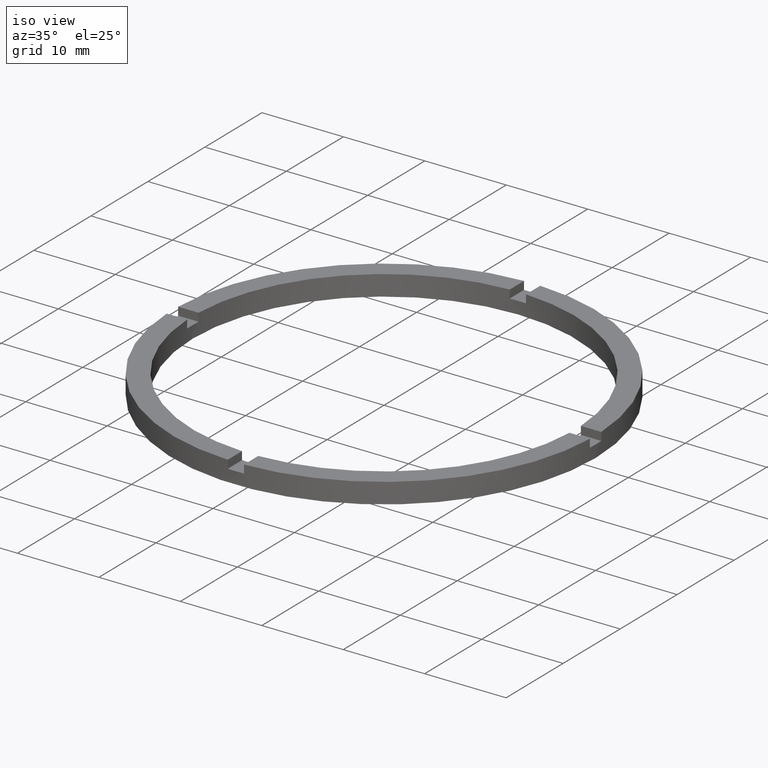
[diagram: clean part render]
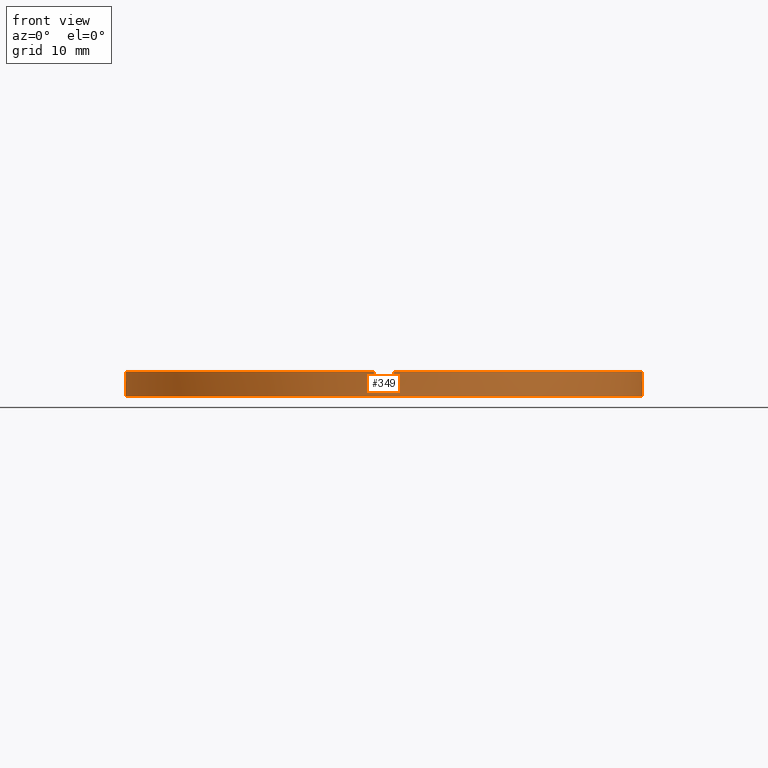
[diagram: tour spotlight — one face highlighted and labeled with its STEP entity id]
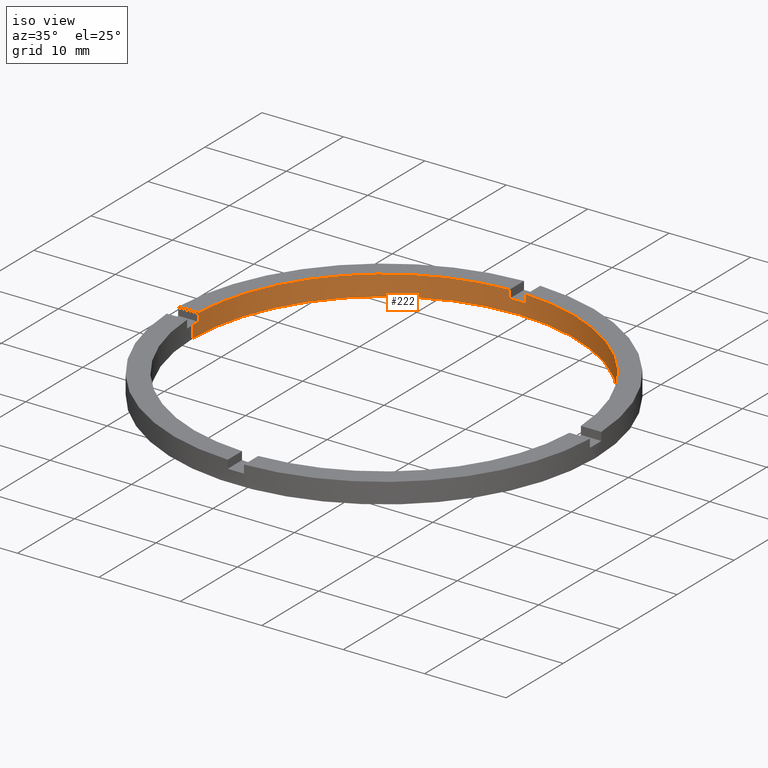
[diagram: tour spotlight — one face highlighted and labeled with its STEP entity id]
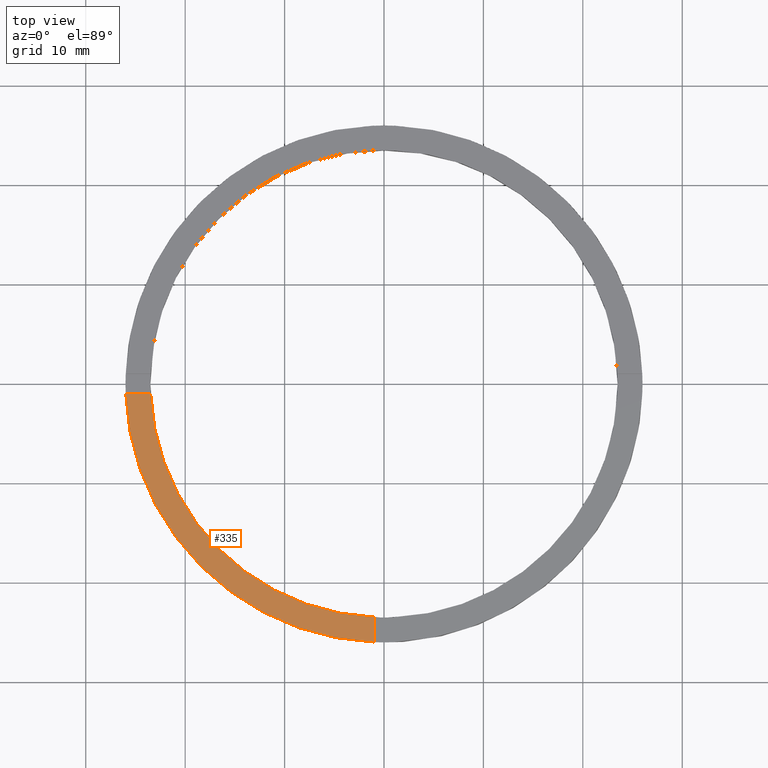
[diagram: tour spotlight — one face highlighted and labeled with its STEP entity id]
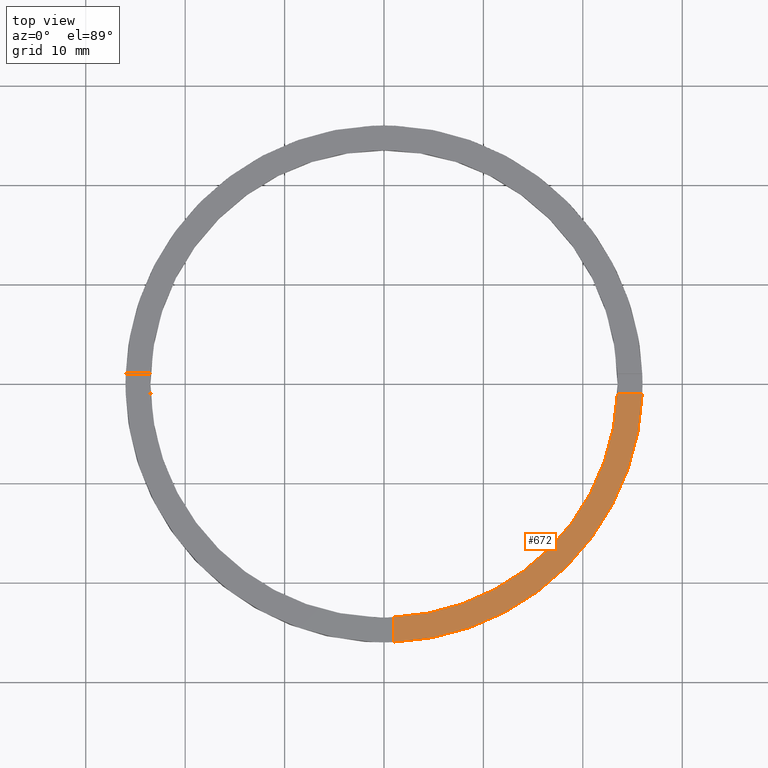
[diagram: tour spotlight — one face highlighted and labeled with its STEP entity id]
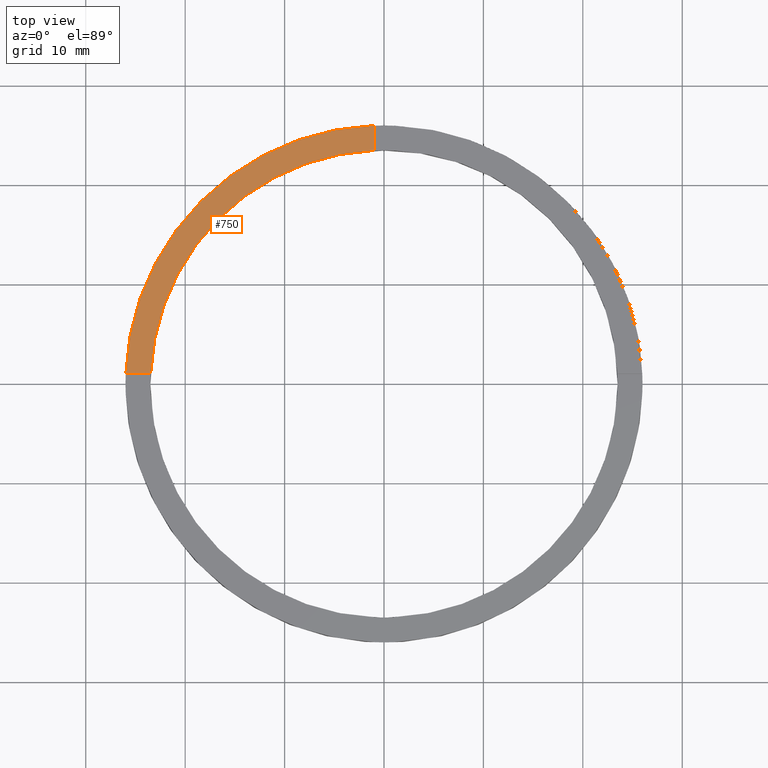
[diagram: tour spotlight — one face highlighted and labeled with its STEP entity id]
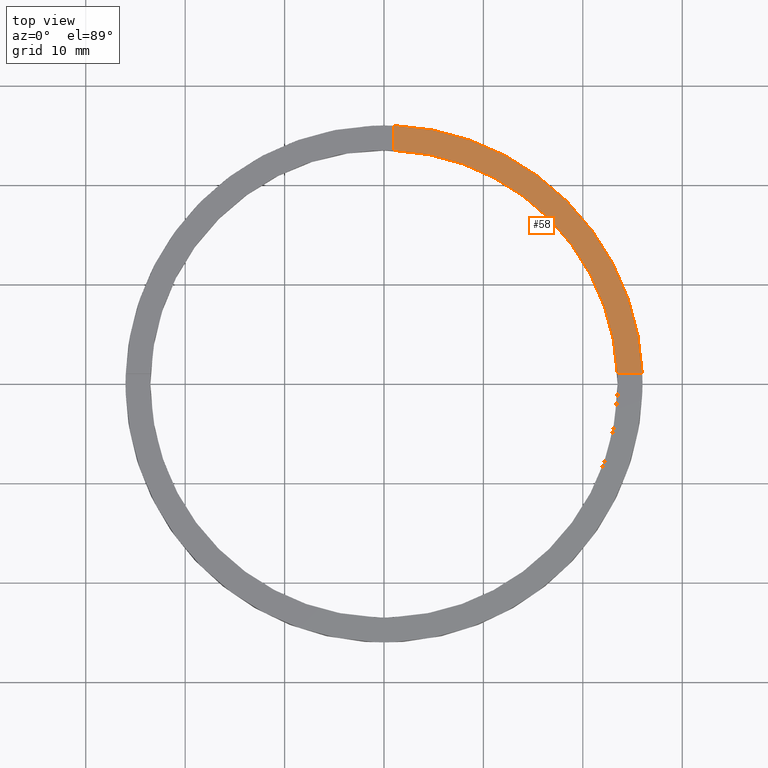
[diagram: tour spotlight — one face highlighted and labeled with its STEP entity id]
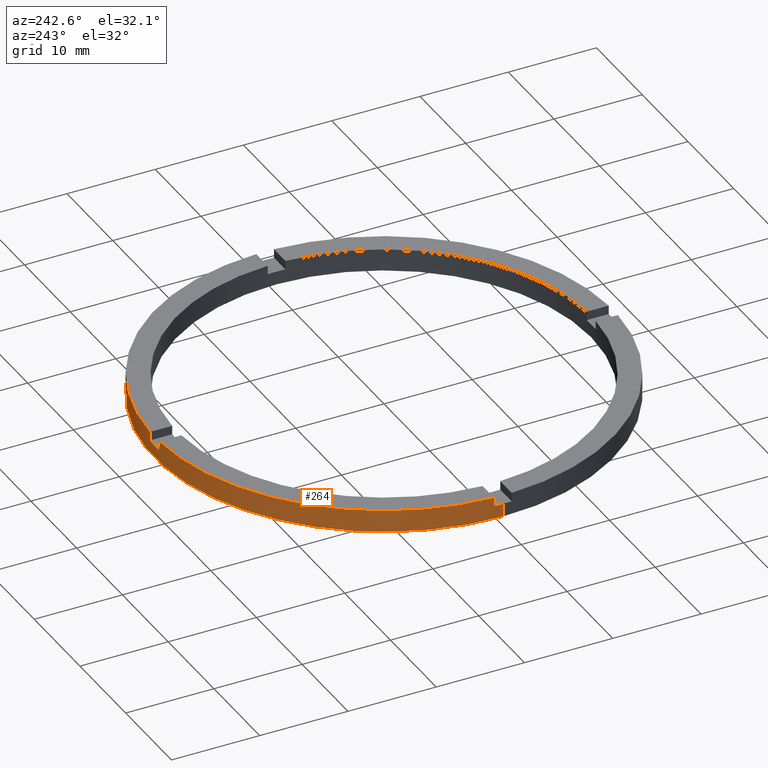
[diagram: tour spotlight — one face highlighted and labeled with its STEP entity id]
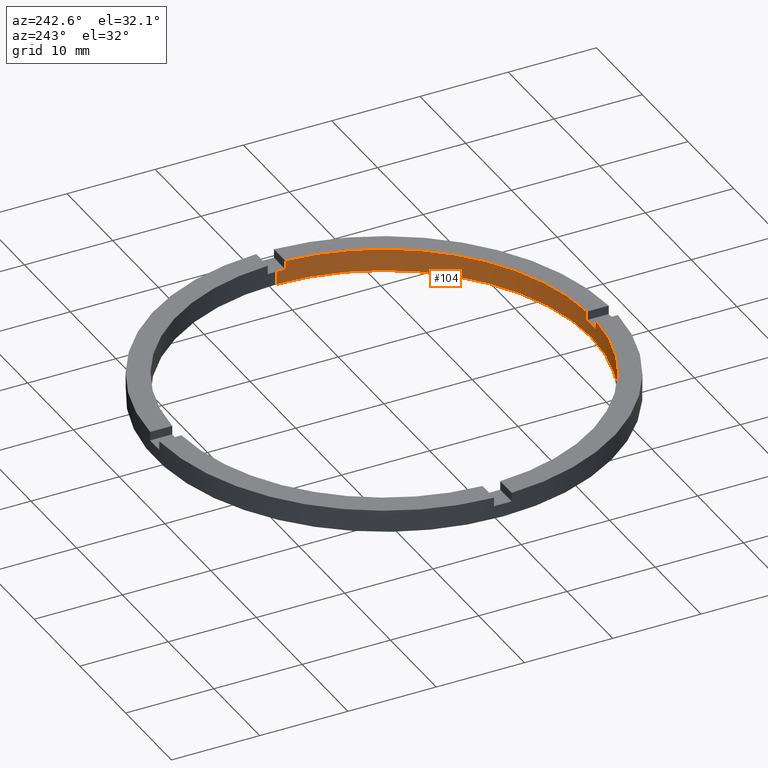
[diagram: tour spotlight — one face highlighted and labeled with its STEP entity id]
A machine part: a face-by-face anatomy tour. The part has 21 B-rep faces; the first image is the clean iso view, then the 8 largest visible faces are spotlighted one at a time (largest first), each with its STEP entity span.

Face 1 — front view, entity #349. In plain terms, the highlighted cylindrical surface (partial cylindrical patch) has radius 26 mm, axis along (-0, -0, -1).
Definition (entity closure, byte-faithful):
#6 = CARTESIAN_POINT ( 'NONE',  ( 0.9999999999998397948, -25.98076211353317078, 1.500000000000000000 ) ) ;
#8 = EDGE_CURVE ( 'NONE', #701, #239, #758, .T. ) ;
#16 = DIRECTION ( 'NONE',  ( 0.000000000000000000, 0.000000000000000000, 1.000000000000000000 ) ) ;
#60 = DIRECTION ( 'NONE',  ( 0.000000000000000000, 0.000000000000000000, 1.000000000000000000 ) ) ;
#78 = DIRECTION ( 'NONE',  ( -0.000000000000000000, -0.000000000000000000, -1.000000000000000000 ) ) ;
#85 = EDGE_CURVE ( 'NONE', #694, #760, #172, .T. ) ;
#88 = CARTESIAN_POINT ( 'NONE',  ( 25.98076211353315657, -1.000000000000157430, 2.500000000000000000 ) ) ;
#90 = EDGE_CURVE ( 'NONE', #163, #731, #158, .T. ) ;
#92 = VERTEX_POINT ( 'NONE', #6 ) ;
#94 = DIRECTION ( 'NONE',  ( -0.000000000000000000, -0.000000000000000000, -1.000000000000000000 ) ) ;
#97 = AXIS2_PLACEMENT_3D ( 'NONE', #463, #299, #529 ) ;
#102 = CARTESIAN_POINT ( 'NONE',  ( -26.00000000000000355, 0.000000000000000000, 2.500000000000000000 ) ) ;
#107 = EDGE_CURVE ( 'NONE', #731, #685, #156, .T. ) ;
#116 = VERTEX_POINT ( 'NONE', #738 ) ;
#127 = CARTESIAN_POINT ( 'NONE',  ( 26.00000000000000355, 3.184081677783118585E-15, 2.500000000000000000 ) ) ;
#133 = CARTESIAN_POINT ( 'NONE',  ( -25.98076211353316367, -1.000000000000026201, 1.500000000000000000 ) ) ;
#156 = LINE ( 'NONE', #127, #157 ) ;
#157 = VECTOR ( 'NONE', #627, 1000.000000000000000 ) ;
#158 = CIRCLE ( 'NONE', #652, 26.00000000000000355 ) ;
#163 = VERTEX_POINT ( 'NONE', #388 ) ;
#168 = CYLINDRICAL_SURFACE ( 'NONE', #97, 26.00000000000000355 ) ;
#172 = CIRCLE ( 'NONE', #641, 26.00000000000000355 ) ;
#173 = ORIENTED_EDGE ( 'NONE', *, *, #107, .F. ) ;
#180 = LINE ( 'NONE', #474, #673 ) ;
#182 = LINE ( 'NONE', #683, #452 ) ;
#186 = VERTEX_POINT ( 'NONE', #636 ) ;
#187 = EDGE_CURVE ( 'NONE', #548, #685, #410, .T. ) ;
#219 = ORIENTED_EDGE ( 'NONE', *, *, #526, .T. ) ;
#220 = CARTESIAN_POINT ( 'NONE',  ( -26.00000000000000355, 0.000000000000000000, 0.000000000000000000 ) ) ;
#228 = ORIENTED_EDGE ( 'NONE', *, *, #271, .T. ) ;
#237 = DIRECTION ( 'NONE',  ( 0.000000000000000000, 0.000000000000000000, 1.000000000000000000 ) ) ;
#239 = VERTEX_POINT ( 'NONE', #133 ) ;
#251 = EDGE_CURVE ( 'NONE', #328, #186, #180, .T. ) ;
#252 = CARTESIAN_POINT ( 'NONE',  ( -26.00000000000000355, 0.000000000000000000, 1.500000000000000000 ) ) ;
#257 = EDGE_CURVE ( 'NONE', #116, #186, #700, .T. ) ;
#259 = AXIS2_PLACEMENT_3D ( 'NONE', #767, #60, #693 ) ;
#270 = VECTOR ( 'NONE', #94, 1000.000000000000000 ) ;
#271 = EDGE_CURVE ( 'NONE', #701, #548, #437, .T. ) ;
#275 = VECTOR ( 'NONE', #557, 1000.000000000000000 ) ;
#286 = LINE ( 'NONE', #379, #270 ) ;
#294 = EDGE_CURVE ( 'NONE', #328, #92, #682, .T. ) ;
#299 = DIRECTION ( 'NONE',  ( -0.000000000000000000, -0.000000000000000000, -1.000000000000000000 ) ) ;
#301 = CARTESIAN_POINT ( 'NONE',  ( 0.000000000000000000, 0.000000000000000000, 2.500000000000000000 ) ) ;
#310 = CARTESIAN_POINT ( 'NONE',  ( 0.000000000000000000, 0.000000000000000000, 1.500000000000000000 ) ) ;
#319 = DIRECTION ( 'NONE',  ( 1.000000000000000000, 0.000000000000000000, 0.000000000000000000 ) ) ;
#328 = VERTEX_POINT ( 'NONE', #538 ) ;
#340 = AXIS2_PLACEMENT_3D ( 'NONE', #644, #615, #395 ) ;
#349 = ADVANCED_FACE ( 'NONE', ( #670 ), #168, .T. ) ;
#358 = DIRECTION ( 'NONE',  ( 0.000000000000000000, 0.000000000000000000, 1.000000000000000000 ) ) ;
#362 = EDGE_CURVE ( 'NONE', #163, #760, #182, .T. ) ;
#379 = CARTESIAN_POINT ( 'NONE',  ( -25.98076211353316367, -1.000000000000026201, 2.500000000000000000 ) ) ;
#388 = CARTESIAN_POINT ( 'NONE',  ( 25.98076211353315657, -1.000000000000157430, 1.500000000000000000 ) ) ;
#395 = DIRECTION ( 'NONE',  ( 1.000000000000000000, 0.000000000000000000, 0.000000000000000000 ) ) ;
#410 = CIRCLE ( 'NONE', #259, 26.00000000000000355 ) ;
#437 = LINE ( 'NONE', #102, #681 ) ;
#452 = VECTOR ( 'NONE', #549, 1000.000000000000000 ) ;
#458 = ORIENTED_EDGE ( 'NONE', *, *, #294, .F. ) ;
#463 = CARTESIAN_POINT ( 'NONE',  ( 0.000000000000000000, 0.000000000000000000, 2.500000000000000000 ) ) ;
#471 = CARTESIAN_POINT ( 'NONE',  ( 0.000000000000000000, 0.000000000000000000, 1.500000000000000000 ) ) ;
#474 = CARTESIAN_POINT ( 'NONE',  ( -1.000000000000160316, -25.98076211353315657, 2.500000000000000000 ) ) ;
#484 = ORIENTED_EDGE ( 'NONE', *, *, #85, .F. ) ;
#499 = CARTESIAN_POINT ( 'NONE',  ( 0.9999999999998397948, -25.98076211353317078, 2.500000000000000000 ) ) ;
#508 = ORIENTED_EDGE ( 'NONE', *, *, #90, .F. ) ;
#513 = CARTESIAN_POINT ( 'NONE',  ( 26.00000000000000355, 3.184081677783118585E-15, 0.000000000000000000 ) ) ;
#526 = EDGE_CURVE ( 'NONE', #694, #92, #545, .T. ) ;
#529 = DIRECTION ( 'NONE',  ( -1.000000000000000000, 0.000000000000000000, 0.000000000000000000 ) ) ;
#538 = CARTESIAN_POINT ( 'NONE',  ( -1.000000000000160316, -25.98076211353315657, 1.500000000000000000 ) ) ;
#545 = LINE ( 'NONE', #653, #275 ) ;
#548 = VERTEX_POINT ( 'NONE', #220 ) ;
#549 = DIRECTION ( 'NONE',  ( 0.000000000000000000, 0.000000000000000000, 1.000000000000000000 ) ) ;
#557 = DIRECTION ( 'NONE',  ( -0.000000000000000000, -0.000000000000000000, -1.000000000000000000 ) ) ;
#558 = CARTESIAN_POINT ( 'NONE',  ( 0.000000000000000000, 0.000000000000000000, 2.500000000000000000 ) ) ;
#564 = DIRECTION ( 'NONE',  ( 0.000000000000000000, -0.000000000000000000, 1.000000000000000000 ) ) ;
#569 = CARTESIAN_POINT ( 'NONE',  ( 26.00000000000000355, 3.184081677783118585E-15, 1.500000000000000000 ) ) ;
#615 = DIRECTION ( 'NONE',  ( -0.000000000000000000, 0.000000000000000000, 1.000000000000000000 ) ) ;
#618 = DIRECTION ( 'NONE',  ( 1.000000000000000000, 0.000000000000000000, 0.000000000000000000 ) ) ;
#620 = DIRECTION ( 'NONE',  ( 0.000000000000000000, 0.000000000000000000, 1.000000000000000000 ) ) ;
#627 = DIRECTION ( 'NONE',  ( -0.000000000000000000, -0.000000000000000000, -1.000000000000000000 ) ) ;
#636 = CARTESIAN_POINT ( 'NONE',  ( -1.000000000000160316, -25.98076211353315657, 2.500000000000000000 ) ) ;
#641 = AXIS2_PLACEMENT_3D ( 'NONE', #558, #620, #716 ) ;
#644 = CARTESIAN_POINT ( 'NONE',  ( 0.000000000000000000, 0.000000000000000000, 1.500000000000000000 ) ) ;
#652 = AXIS2_PLACEMENT_3D ( 'NONE', #310, #564, #726 ) ;
#653 = CARTESIAN_POINT ( 'NONE',  ( 0.9999999999998397948, -25.98076211353317078, 2.500000000000000000 ) ) ;
#670 = FACE_OUTER_BOUND ( 'NONE', #724, .T. ) ;
#673 = VECTOR ( 'NONE', #237, 1000.000000000000000 ) ;
#681 = VECTOR ( 'NONE', #78, 1000.000000000000000 ) ;
#682 = CIRCLE ( 'NONE', #340, 26.00000000000000355 ) ;
#683 = CARTESIAN_POINT ( 'NONE',  ( 25.98076211353315657, -1.000000000000157430, 2.500000000000000000 ) ) ;
#685 = VERTEX_POINT ( 'NONE', #513 ) ;
#690 = ORIENTED_EDGE ( 'NONE', *, *, #780, .T. ) ;
#693 = DIRECTION ( 'NONE',  ( 1.000000000000000000, 0.000000000000000000, 0.000000000000000000 ) ) ;
#694 = VERTEX_POINT ( 'NONE', #499 ) ;
#700 = CIRCLE ( 'NONE', #723, 26.00000000000000355 ) ;
#701 = VERTEX_POINT ( 'NONE', #252 ) ;
#704 = ORIENTED_EDGE ( 'NONE', *, *, #251, .T. ) ;
#716 = DIRECTION ( 'NONE',  ( 1.000000000000000000, 0.000000000000000000, 0.000000000000000000 ) ) ;
#723 = AXIS2_PLACEMENT_3D ( 'NONE', #301, #358, #618 ) ;
#724 = EDGE_LOOP ( 'NONE', ( #173, #508, #752, #484, #219, #458, #704, #742, #690, #747, #228, #745 ) ) ;
#726 = DIRECTION ( 'NONE',  ( 1.000000000000000000, 0.000000000000000000, 0.000000000000000000 ) ) ;
#731 = VERTEX_POINT ( 'NONE', #569 ) ;
#738 = CARTESIAN_POINT ( 'NONE',  ( -25.98076211353316367, -1.000000000000026201, 2.500000000000000000 ) ) ;
#742 = ORIENTED_EDGE ( 'NONE', *, *, #257, .F. ) ;
#745 = ORIENTED_EDGE ( 'NONE', *, *, #187, .T. ) ;
#747 = ORIENTED_EDGE ( 'NONE', *, *, #8, .F. ) ;
#752 = ORIENTED_EDGE ( 'NONE', *, *, #362, .T. ) ;
#758 = CIRCLE ( 'NONE', #774, 26.00000000000000355 ) ;
#760 = VERTEX_POINT ( 'NONE', #88 ) ;
#767 = CARTESIAN_POINT ( 'NONE',  ( 0.000000000000000000, 0.000000000000000000, 0.000000000000000000 ) ) ;
#774 = AXIS2_PLACEMENT_3D ( 'NONE', #471, #16, #319 ) ;
#780 = EDGE_CURVE ( 'NONE', #116, #239, #286, .T. ) ;

Face 2 — iso view, entity #222. In plain terms, the highlighted cylindrical surface (partial cylindrical patch) has radius 23.5 mm, axis along (-0, -0, -1).
Definition (entity closure, byte-faithful):
#5 = VECTOR ( 'NONE', #650, 1000.000000000000000 ) ;
#22 = VERTEX_POINT ( 'NONE', #409 ) ;
#28 = CIRCLE ( 'NONE', #138, 23.50000000000000355 ) ;
#39 = DIRECTION ( 'NONE',  ( -0.000000000000000000, -0.000000000000000000, -1.000000000000000000 ) ) ;
#46 = DIRECTION ( 'NONE',  ( 1.000000000000000000, 0.000000000000000000, 0.000000000000000000 ) ) ;
#65 = VERTEX_POINT ( 'NONE', #708 ) ;
#71 = AXIS2_PLACEMENT_3D ( 'NONE', #517, #381, #128 ) ;
#89 = AXIS2_PLACEMENT_3D ( 'NONE', #525, #137, #601 ) ;
#93 = AXIS2_PLACEMENT_3D ( 'NONE', #293, #687, #607 ) ;
#99 = CARTESIAN_POINT ( 'NONE',  ( 23.50000000000000355, 2.877919977996280715E-15, 1.500000000000000000 ) ) ;
#103 = DIRECTION ( 'NONE',  ( 0.000000000000000000, 0.000000000000000000, 1.000000000000000000 ) ) ;
#105 = DIRECTION ( 'NONE',  ( 1.000000000000000000, 0.000000000000000000, 0.000000000000000000 ) ) ;
#106 = CARTESIAN_POINT ( 'NONE',  ( 23.47871376374779828, 0.9999999999998425704, 2.500000000000000000 ) ) ;
#112 = CARTESIAN_POINT ( 'NONE',  ( -1.000000000000026201, 23.47871376374779118, 1.500000000000000000 ) ) ;
#118 = AXIS2_PLACEMENT_3D ( 'NONE', #655, #773, #105 ) ;
#128 = DIRECTION ( 'NONE',  ( 1.000000000000000000, 0.000000000000000000, 0.000000000000000000 ) ) ;
#137 = DIRECTION ( 'NONE',  ( 0.000000000000000000, 0.000000000000000000, 1.000000000000000000 ) ) ;
#138 = AXIS2_PLACEMENT_3D ( 'NONE', #203, #343, #46 ) ;
#143 = CARTESIAN_POINT ( 'NONE',  ( 0.000000000000000000, 0.000000000000000000, 2.500000000000000000 ) ) ;
#146 = CARTESIAN_POINT ( 'NONE',  ( 23.47871376374779828, 0.9999999999998425704, 1.500000000000000000 ) ) ;
#147 = EDGE_CURVE ( 'NONE', #22, #481, #434, .T. ) ;
#155 = CARTESIAN_POINT ( 'NONE',  ( 23.50000000000000355, 2.877919977996280715E-15, 2.500000000000000000 ) ) ;
#175 = ORIENTED_EDGE ( 'NONE', *, *, #552, .T. ) ;
#176 = EDGE_CURVE ( 'NONE', #429, #770, #447, .T. ) ;
#179 = AXIS2_PLACEMENT_3D ( 'NONE', #143, #284, #391 ) ;
#203 = CARTESIAN_POINT ( 'NONE',  ( 0.000000000000000000, 0.000000000000000000, 1.500000000000000000 ) ) ;
#207 = VERTEX_POINT ( 'NONE', #99 ) ;
#213 = VERTEX_POINT ( 'NONE', #146 ) ;
#221 = ORIENTED_EDGE ( 'NONE', *, *, #669, .T. ) ;
#222 = ADVANCED_FACE ( 'NONE', ( #688 ), #418, .F. ) ;
#256 = CARTESIAN_POINT ( 'NONE',  ( -23.50000000000000355, 0.000000000000000000, 2.500000000000000000 ) ) ;
#262 = CIRCLE ( 'NONE', #179, 23.50000000000000355 ) ;
#263 = VECTOR ( 'NONE', #39, 1000.000000000000000 ) ;
#276 = CIRCLE ( 'NONE', #71, 23.50000000000000355 ) ;
#278 = LINE ( 'NONE', #320, #565 ) ;
#284 = DIRECTION ( 'NONE',  ( 0.000000000000000000, 0.000000000000000000, 1.000000000000000000 ) ) ;
#293 = CARTESIAN_POINT ( 'NONE',  ( 0.000000000000000000, 0.000000000000000000, 2.500000000000000000 ) ) ;
#295 = LINE ( 'NONE', #715, #573 ) ;
#320 = CARTESIAN_POINT ( 'NONE',  ( 23.47871376374779828, 0.9999999999998425704, 2.500000000000000000 ) ) ;
#322 = VERTEX_POINT ( 'NONE', #112 ) ;
#326 = CARTESIAN_POINT ( 'NONE',  ( -1.000000000000026201, 23.47871376374779118, 2.500000000000000000 ) ) ;
#343 = DIRECTION ( 'NONE',  ( 0.000000000000000000, -0.000000000000000000, 1.000000000000000000 ) ) ;
#344 = AXIS2_PLACEMENT_3D ( 'NONE', #531, #611, #639 ) ;
#346 = DIRECTION ( 'NONE',  ( 0.000000000000000000, 0.000000000000000000, 1.000000000000000000 ) ) ;
#355 = CARTESIAN_POINT ( 'NONE',  ( -23.50000000000000355, 0.000000000000000000, 1.500000000000000000 ) ) ;
#366 = EDGE_CURVE ( 'NONE', #22, #322, #692, .T. ) ;
#371 = DIRECTION ( 'NONE',  ( -0.000000000000000000, -0.000000000000000000, -1.000000000000000000 ) ) ;
#381 = DIRECTION ( 'NONE',  ( 0.000000000000000000, 0.000000000000000000, 1.000000000000000000 ) ) ;
#391 = DIRECTION ( 'NONE',  ( 1.000000000000000000, 0.000000000000000000, 0.000000000000000000 ) ) ;
#409 = CARTESIAN_POINT ( 'NONE',  ( 0.9999999999999737987, 23.47871376374779473, 1.500000000000000000 ) ) ;
#418 = CYLINDRICAL_SURFACE ( 'NONE', #93, 23.50000000000000355 ) ;
#429 = VERTEX_POINT ( 'NONE', #586 ) ;
#434 = LINE ( 'NONE', #759, #686 ) ;
#438 = EDGE_CURVE ( 'NONE', #592, #481, #276, .T. ) ;
#442 = VECTOR ( 'NONE', #103, 1000.000000000000000 ) ;
#443 = ORIENTED_EDGE ( 'NONE', *, *, #616, .F. ) ;
#446 = ORIENTED_EDGE ( 'NONE', *, *, #546, .F. ) ;
#447 = LINE ( 'NONE', #679, #442 ) ;
#448 = ORIENTED_EDGE ( 'NONE', *, *, #662, .T. ) ;
#481 = VERTEX_POINT ( 'NONE', #486 ) ;
#486 = CARTESIAN_POINT ( 'NONE',  ( 0.9999999999999737987, 23.47871376374779473, 2.500000000000000000 ) ) ;
#491 = ORIENTED_EDGE ( 'NONE', *, *, #176, .F. ) ;
#505 = ORIENTED_EDGE ( 'NONE', *, *, #147, .F. ) ;
#510 = ORIENTED_EDGE ( 'NONE', *, *, #438, .T. ) ;
#511 = EDGE_CURVE ( 'NONE', #207, #721, #543, .T. ) ;
#516 = VERTEX_POINT ( 'NONE', #355 ) ;
#517 = CARTESIAN_POINT ( 'NONE',  ( 0.000000000000000000, 0.000000000000000000, 2.500000000000000000 ) ) ;
#525 = CARTESIAN_POINT ( 'NONE',  ( 0.000000000000000000, 0.000000000000000000, 1.500000000000000000 ) ) ;
#531 = CARTESIAN_POINT ( 'NONE',  ( 0.000000000000000000, 0.000000000000000000, 0.000000000000000000 ) ) ;
#533 = CIRCLE ( 'NONE', #89, 23.50000000000000355 ) ;
#535 = CIRCLE ( 'NONE', #344, 23.50000000000000355 ) ;
#543 = LINE ( 'NONE', #155, #5 ) ;
#546 = EDGE_CURVE ( 'NONE', #622, #322, #295, .T. ) ;
#547 = DIRECTION ( 'NONE',  ( -0.000000000000000000, -0.000000000000000000, -1.000000000000000000 ) ) ;
#552 = EDGE_CURVE ( 'NONE', #622, #770, #262, .T. ) ;
#562 = LINE ( 'NONE', #256, #263 ) ;
#563 = EDGE_CURVE ( 'NONE', #721, #65, #535, .T. ) ;
#565 = VECTOR ( 'NONE', #371, 1000.000000000000000 ) ;
#573 = VECTOR ( 'NONE', #547, 1000.000000000000000 ) ;
#586 = CARTESIAN_POINT ( 'NONE',  ( -23.47871376374779473, 0.9999999999999742428, 1.500000000000000000 ) ) ;
#588 = CARTESIAN_POINT ( 'NONE',  ( 23.50000000000000355, 2.877919977996280715E-15, 0.000000000000000000 ) ) ;
#592 = VERTEX_POINT ( 'NONE', #106 ) ;
#601 = DIRECTION ( 'NONE',  ( 1.000000000000000000, 0.000000000000000000, 0.000000000000000000 ) ) ;
#607 = DIRECTION ( 'NONE',  ( -1.000000000000000000, 0.000000000000000000, 0.000000000000000000 ) ) ;
#611 = DIRECTION ( 'NONE',  ( 0.000000000000000000, 0.000000000000000000, 1.000000000000000000 ) ) ;
#616 = EDGE_CURVE ( 'NONE', #592, #213, #278, .T. ) ;
#622 = VERTEX_POINT ( 'NONE', #326 ) ;
#639 = DIRECTION ( 'NONE',  ( 1.000000000000000000, 0.000000000000000000, 0.000000000000000000 ) ) ;
#650 = DIRECTION ( 'NONE',  ( -0.000000000000000000, -0.000000000000000000, -1.000000000000000000 ) ) ;
#655 = CARTESIAN_POINT ( 'NONE',  ( 0.000000000000000000, 0.000000000000000000, 1.500000000000000000 ) ) ;
#658 = CARTESIAN_POINT ( 'NONE',  ( -23.47871376374779473, 0.9999999999999742428, 2.500000000000000000 ) ) ;
#662 = EDGE_CURVE ( 'NONE', #207, #213, #28, .T. ) ;
#669 = EDGE_CURVE ( 'NONE', #429, #516, #533, .T. ) ;
#679 = CARTESIAN_POINT ( 'NONE',  ( -23.47871376374779473, 0.9999999999999742428, 2.500000000000000000 ) ) ;
#686 = VECTOR ( 'NONE', #346, 1000.000000000000000 ) ;
#687 = DIRECTION ( 'NONE',  ( -0.000000000000000000, -0.000000000000000000, -1.000000000000000000 ) ) ;
#688 = FACE_OUTER_BOUND ( 'NONE', #717, .T. ) ;
#692 = CIRCLE ( 'NONE', #118, 23.50000000000000355 ) ;
#708 = CARTESIAN_POINT ( 'NONE',  ( -23.50000000000000355, 0.000000000000000000, 0.000000000000000000 ) ) ;
#711 = ORIENTED_EDGE ( 'NONE', *, *, #563, .F. ) ;
#715 = CARTESIAN_POINT ( 'NONE',  ( -1.000000000000026201, 23.47871376374779118, 2.500000000000000000 ) ) ;
#717 = EDGE_LOOP ( 'NONE', ( #762, #448, #443, #510, #505, #734, #446, #175, #491, #221, #749, #711 ) ) ;
#721 = VERTEX_POINT ( 'NONE', #588 ) ;
#734 = ORIENTED_EDGE ( 'NONE', *, *, #366, .T. ) ;
#749 = ORIENTED_EDGE ( 'NONE', *, *, #756, .T. ) ;
#756 = EDGE_CURVE ( 'NONE', #516, #65, #562, .T. ) ;
#759 = CARTESIAN_POINT ( 'NONE',  ( 0.9999999999999737987, 23.47871376374779473, 2.500000000000000000 ) ) ;
#762 = ORIENTED_EDGE ( 'NONE', *, *, #511, .F. ) ;
#770 = VERTEX_POINT ( 'NONE', #658 ) ;
#773 = DIRECTION ( 'NONE',  ( 0.000000000000000000, -0.000000000000000000, 1.000000000000000000 ) ) ;

Face 3 — top view, entity #335. In plain terms, the highlighted planar face has unit normal (0, 0, 1).
Definition (entity closure, byte-faithful):
#29 = CARTESIAN_POINT ( 'NONE',  ( -1.000000000000160760, -23.47871376374778407, 2.500000000000000000 ) ) ;
#42 = CARTESIAN_POINT ( 'NONE',  ( -1.000000000000161648, -16.00000000000018119, 2.500000000000000000 ) ) ;
#49 = DIRECTION ( 'NONE',  ( 1.000000000000000000, 1.734723475976806848E-16, -0.000000000000000000 ) ) ;
#56 = DIRECTION ( 'NONE',  ( 1.000000000000000000, 0.000000000000000000, -0.000000000000000000 ) ) ;
#96 = DIRECTION ( 'NONE',  ( 1.301042606982605074E-16, -1.000000000000000000, 0.000000000000000000 ) ) ;
#116 = VERTEX_POINT ( 'NONE', #738 ) ;
#120 = VERTEX_POINT ( 'NONE', #29 ) ;
#134 = AXIS2_PLACEMENT_3D ( 'NONE', #142, #781, #765 ) ;
#142 = CARTESIAN_POINT ( 'NONE',  ( 0.000000000000000000, 0.000000000000000000, 2.500000000000000000 ) ) ;
#144 = LINE ( 'NONE', #667, #164 ) ;
#151 = CARTESIAN_POINT ( 'NONE',  ( 0.000000000000000000, 0.000000000000000000, 2.500000000000000000 ) ) ;
#164 = VECTOR ( 'NONE', #49, 1000.000000000000000 ) ;
#169 = ORIENTED_EDGE ( 'NONE', *, *, #257, .T. ) ;
#170 = EDGE_CURVE ( 'NONE', #116, #766, #144, .T. ) ;
#186 = VERTEX_POINT ( 'NONE', #636 ) ;
#226 = EDGE_CURVE ( 'NONE', #120, #186, #677, .T. ) ;
#245 = CARTESIAN_POINT ( 'NONE',  ( -23.47871376374779118, -1.000000000000025757, 2.500000000000000000 ) ) ;
#257 = EDGE_CURVE ( 'NONE', #116, #186, #700, .T. ) ;
#301 = CARTESIAN_POINT ( 'NONE',  ( 0.000000000000000000, 0.000000000000000000, 2.500000000000000000 ) ) ;
#308 = EDGE_CURVE ( 'NONE', #766, #120, #705, .T. ) ;
#335 = ADVANCED_FACE ( 'NONE', ( #427 ), #361, .T. ) ;
#358 = DIRECTION ( 'NONE',  ( 0.000000000000000000, 0.000000000000000000, 1.000000000000000000 ) ) ;
#361 = PLANE ( 'NONE',  #730 ) ;
#427 = FACE_OUTER_BOUND ( 'NONE', #467, .T. ) ;
#467 = EDGE_LOOP ( 'NONE', ( #696, #761, #753, #169 ) ) ;
#618 = DIRECTION ( 'NONE',  ( 1.000000000000000000, 0.000000000000000000, 0.000000000000000000 ) ) ;
#636 = CARTESIAN_POINT ( 'NONE',  ( -1.000000000000160316, -25.98076211353315657, 2.500000000000000000 ) ) ;
#667 = CARTESIAN_POINT ( 'NONE',  ( -16.00000000000018474, -1.000000000000024425, 2.500000000000000000 ) ) ;
#668 = VECTOR ( 'NONE', #96, 1000.000000000000000 ) ;
#677 = LINE ( 'NONE', #42, #668 ) ;
#696 = ORIENTED_EDGE ( 'NONE', *, *, #226, .F. ) ;
#700 = CIRCLE ( 'NONE', #723, 26.00000000000000355 ) ;
#705 = CIRCLE ( 'NONE', #134, 23.50000000000000355 ) ;
#723 = AXIS2_PLACEMENT_3D ( 'NONE', #301, #358, #618 ) ;
#730 = AXIS2_PLACEMENT_3D ( 'NONE', #151, #777, #56 ) ;
#738 = CARTESIAN_POINT ( 'NONE',  ( -25.98076211353316367, -1.000000000000026201, 2.500000000000000000 ) ) ;
#753 = ORIENTED_EDGE ( 'NONE', *, *, #170, .F. ) ;
#761 = ORIENTED_EDGE ( 'NONE', *, *, #308, .F. ) ;
#765 = DIRECTION ( 'NONE',  ( 1.000000000000000000, 0.000000000000000000, 0.000000000000000000 ) ) ;
#766 = VERTEX_POINT ( 'NONE', #245 ) ;
#777 = DIRECTION ( 'NONE',  ( 0.000000000000000000, 0.000000000000000000, 1.000000000000000000 ) ) ;
#781 = DIRECTION ( 'NONE',  ( 0.000000000000000000, 0.000000000000000000, 1.000000000000000000 ) ) ;

Face 4 — top view, entity #672. In plain terms, the highlighted planar face has unit normal (0, 0, 1).
Definition (entity closure, byte-faithful):
#4 = DIRECTION ( 'NONE',  ( 1.000000000000000000, 0.000000000000000000, -0.000000000000000000 ) ) ;
#14 = EDGE_CURVE ( 'NONE', #178, #760, #232, .T. ) ;
#82 = CARTESIAN_POINT ( 'NONE',  ( 0.000000000000000000, 0.000000000000000000, 2.500000000000000000 ) ) ;
#84 = CARTESIAN_POINT ( 'NONE',  ( 0.000000000000000000, 0.000000000000000000, 2.500000000000000000 ) ) ;
#85 = EDGE_CURVE ( 'NONE', #694, #760, #172, .T. ) ;
#88 = CARTESIAN_POINT ( 'NONE',  ( 25.98076211353315657, -1.000000000000157430, 2.500000000000000000 ) ) ;
#111 = DIRECTION ( 'NONE',  ( 1.000000000000000000, 4.336808689942017120E-17, 0.000000000000000000 ) ) ;
#139 = AXIS2_PLACEMENT_3D ( 'NONE', #82, #630, #665 ) ;
#172 = CIRCLE ( 'NONE', #641, 26.00000000000000355 ) ;
#178 = VERTEX_POINT ( 'NONE', #532 ) ;
#183 = CARTESIAN_POINT ( 'NONE',  ( 0.9999999999998384625, -16.00000000000018119, 2.500000000000000000 ) ) ;
#200 = ORIENTED_EDGE ( 'NONE', *, *, #718, .F. ) ;
#204 = ORIENTED_EDGE ( 'NONE', *, *, #14, .F. ) ;
#232 = LINE ( 'NONE', #623, #674 ) ;
#285 = LINE ( 'NONE', #183, #298 ) ;
#289 = CIRCLE ( 'NONE', #139, 23.50000000000000355 ) ;
#298 = VECTOR ( 'NONE', #405, 1000.000000000000000 ) ;
#311 = VERTEX_POINT ( 'NONE', #472 ) ;
#351 = EDGE_LOOP ( 'NONE', ( #204, #200, #461, #497 ) ) ;
#385 = EDGE_CURVE ( 'NONE', #694, #311, #285, .T. ) ;
#405 = DIRECTION ( 'NONE',  ( -1.301042606982605074E-16, 1.000000000000000000, -0.000000000000000000 ) ) ;
#461 = ORIENTED_EDGE ( 'NONE', *, *, #385, .F. ) ;
#472 = CARTESIAN_POINT ( 'NONE',  ( 0.9999999999998393507, -23.47871376374779828, 2.500000000000000000 ) ) ;
#497 = ORIENTED_EDGE ( 'NONE', *, *, #85, .T. ) ;
#499 = CARTESIAN_POINT ( 'NONE',  ( 0.9999999999998397948, -25.98076211353317078, 2.500000000000000000 ) ) ;
#518 = DIRECTION ( 'NONE',  ( 0.000000000000000000, 0.000000000000000000, 1.000000000000000000 ) ) ;
#532 = CARTESIAN_POINT ( 'NONE',  ( 23.47871376374778407, -1.000000000000157430, 2.500000000000000000 ) ) ;
#556 = FACE_OUTER_BOUND ( 'NONE', #351, .T. ) ;
#558 = CARTESIAN_POINT ( 'NONE',  ( 0.000000000000000000, 0.000000000000000000, 2.500000000000000000 ) ) ;
#620 = DIRECTION ( 'NONE',  ( 0.000000000000000000, 0.000000000000000000, 1.000000000000000000 ) ) ;
#623 = CARTESIAN_POINT ( 'NONE',  ( 15.99999999999999645, -1.000000000000157874, 2.500000000000000000 ) ) ;
#628 = AXIS2_PLACEMENT_3D ( 'NONE', #84, #518, #4 ) ;
#630 = DIRECTION ( 'NONE',  ( 0.000000000000000000, 0.000000000000000000, 1.000000000000000000 ) ) ;
#641 = AXIS2_PLACEMENT_3D ( 'NONE', #558, #620, #716 ) ;
#665 = DIRECTION ( 'NONE',  ( 1.000000000000000000, 0.000000000000000000, 0.000000000000000000 ) ) ;
#672 = ADVANCED_FACE ( 'NONE', ( #556 ), #764, .T. ) ;
#674 = VECTOR ( 'NONE', #111, 1000.000000000000000 ) ;
#694 = VERTEX_POINT ( 'NONE', #499 ) ;
#716 = DIRECTION ( 'NONE',  ( 1.000000000000000000, 0.000000000000000000, 0.000000000000000000 ) ) ;
#718 = EDGE_CURVE ( 'NONE', #311, #178, #289, .T. ) ;
#760 = VERTEX_POINT ( 'NONE', #88 ) ;
#764 = PLANE ( 'NONE',  #628 ) ;

Face 5 — top view, entity #750. In plain terms, the highlighted planar face has unit normal (0, 0, 1).
Definition (entity closure, byte-faithful):
#10 = DIRECTION ( 'NONE',  ( 1.000000000000000000, 0.000000000000000000, -0.000000000000000000 ) ) ;
#11 = ORIENTED_EDGE ( 'NONE', *, *, #552, .F. ) ;
#26 = VECTOR ( 'NONE', #314, 1000.000000000000000 ) ;
#80 = PLANE ( 'NONE',  #348 ) ;
#140 = CARTESIAN_POINT ( 'NONE',  ( -25.98076211353316367, 0.9999999999999737987, 2.500000000000000000 ) ) ;
#143 = CARTESIAN_POINT ( 'NONE',  ( 0.000000000000000000, 0.000000000000000000, 2.500000000000000000 ) ) ;
#159 = CIRCLE ( 'NONE', #394, 26.00000000000000355 ) ;
#179 = AXIS2_PLACEMENT_3D ( 'NONE', #143, #284, #391 ) ;
#185 = DIRECTION ( 'NONE',  ( 0.000000000000000000, 0.000000000000000000, 1.000000000000000000 ) ) ;
#202 = VERTEX_POINT ( 'NONE', #140 ) ;
#223 = EDGE_CURVE ( 'NONE', #436, #622, #408, .T. ) ;
#231 = EDGE_LOOP ( 'NONE', ( #455, #729, #233, #11 ) ) ;
#233 = ORIENTED_EDGE ( 'NONE', *, *, #411, .F. ) ;
#235 = DIRECTION ( 'NONE',  ( 0.000000000000000000, 0.000000000000000000, 1.000000000000000000 ) ) ;
#244 = CARTESIAN_POINT ( 'NONE',  ( -16.00000000000018474, 0.9999999999999754641, 2.500000000000000000 ) ) ;
#262 = CIRCLE ( 'NONE', #179, 23.50000000000000355 ) ;
#267 = LINE ( 'NONE', #244, #26 ) ;
#284 = DIRECTION ( 'NONE',  ( 0.000000000000000000, 0.000000000000000000, 1.000000000000000000 ) ) ;
#314 = DIRECTION ( 'NONE',  ( -1.000000000000000000, -1.734723475976806848E-16, 0.000000000000000000 ) ) ;
#326 = CARTESIAN_POINT ( 'NONE',  ( -1.000000000000026201, 23.47871376374779118, 2.500000000000000000 ) ) ;
#336 = CARTESIAN_POINT ( 'NONE',  ( -1.000000000000026201, 25.98076211353316367, 2.500000000000000000 ) ) ;
#338 = EDGE_CURVE ( 'NONE', #436, #202, #159, .T. ) ;
#348 = AXIS2_PLACEMENT_3D ( 'NONE', #376, #185, #10 ) ;
#376 = CARTESIAN_POINT ( 'NONE',  ( 0.000000000000000000, 0.000000000000000000, 2.500000000000000000 ) ) ;
#391 = DIRECTION ( 'NONE',  ( 1.000000000000000000, 0.000000000000000000, 0.000000000000000000 ) ) ;
#394 = AXIS2_PLACEMENT_3D ( 'NONE', #403, #235, #489 ) ;
#403 = CARTESIAN_POINT ( 'NONE',  ( 0.000000000000000000, 0.000000000000000000, 2.500000000000000000 ) ) ;
#408 = LINE ( 'NONE', #751, #416 ) ;
#411 = EDGE_CURVE ( 'NONE', #770, #202, #267, .T. ) ;
#416 = VECTOR ( 'NONE', #519, 1000.000000000000000 ) ;
#436 = VERTEX_POINT ( 'NONE', #336 ) ;
#455 = ORIENTED_EDGE ( 'NONE', *, *, #223, .F. ) ;
#489 = DIRECTION ( 'NONE',  ( 1.000000000000000000, 0.000000000000000000, 0.000000000000000000 ) ) ;
#519 = DIRECTION ( 'NONE',  ( -0.000000000000000000, -1.000000000000000000, -0.000000000000000000 ) ) ;
#552 = EDGE_CURVE ( 'NONE', #622, #770, #262, .T. ) ;
#575 = FACE_OUTER_BOUND ( 'NONE', #231, .T. ) ;
#622 = VERTEX_POINT ( 'NONE', #326 ) ;
#658 = CARTESIAN_POINT ( 'NONE',  ( -23.47871376374779473, 0.9999999999999742428, 2.500000000000000000 ) ) ;
#729 = ORIENTED_EDGE ( 'NONE', *, *, #338, .T. ) ;
#750 = ADVANCED_FACE ( 'NONE', ( #575 ), #80, .T. ) ;
#751 = CARTESIAN_POINT ( 'NONE',  ( -1.000000000000026201, 16.00000000000000000, 2.500000000000000000 ) ) ;
#770 = VERTEX_POINT ( 'NONE', #658 ) ;

Face 6 — top view, entity #58. In plain terms, the highlighted planar face has unit normal (0, 0, 1).
Definition (entity closure, byte-faithful):
#7 = VECTOR ( 'NONE', #691, 1000.000000000000000 ) ;
#30 = CIRCLE ( 'NONE', #524, 26.00000000000000355 ) ;
#40 = LINE ( 'NONE', #722, #568 ) ;
#58 = ADVANCED_FACE ( 'NONE', ( #414 ), #699, .T. ) ;
#71 = AXIS2_PLACEMENT_3D ( 'NONE', #517, #381, #128 ) ;
#91 = CARTESIAN_POINT ( 'NONE',  ( 25.98076211353317078, 0.9999999999998425704, 2.500000000000000000 ) ) ;
#100 = VERTEX_POINT ( 'NONE', #579 ) ;
#106 = CARTESIAN_POINT ( 'NONE',  ( 23.47871376374779828, 0.9999999999998425704, 2.500000000000000000 ) ) ;
#126 = DIRECTION ( 'NONE',  ( -1.000000000000000000, -4.336808689942017120E-17, -0.000000000000000000 ) ) ;
#128 = DIRECTION ( 'NONE',  ( 1.000000000000000000, 0.000000000000000000, 0.000000000000000000 ) ) ;
#162 = DIRECTION ( 'NONE',  ( 0.000000000000000000, 0.000000000000000000, 1.000000000000000000 ) ) ;
#190 = ORIENTED_EDGE ( 'NONE', *, *, #438, .F. ) ;
#240 = ORIENTED_EDGE ( 'NONE', *, *, #772, .F. ) ;
#258 = ORIENTED_EDGE ( 'NONE', *, *, #578, .F. ) ;
#276 = CIRCLE ( 'NONE', #71, 23.50000000000000355 ) ;
#297 = AXIS2_PLACEMENT_3D ( 'NONE', #488, #162, #356 ) ;
#356 = DIRECTION ( 'NONE',  ( 1.000000000000000000, 0.000000000000000000, -0.000000000000000000 ) ) ;
#360 = DIRECTION ( 'NONE',  ( 1.000000000000000000, 0.000000000000000000, 0.000000000000000000 ) ) ;
#381 = DIRECTION ( 'NONE',  ( 0.000000000000000000, 0.000000000000000000, 1.000000000000000000 ) ) ;
#398 = CARTESIAN_POINT ( 'NONE',  ( 0.000000000000000000, 0.000000000000000000, 2.500000000000000000 ) ) ;
#414 = FACE_OUTER_BOUND ( 'NONE', #426, .T. ) ;
#426 = EDGE_LOOP ( 'NONE', ( #258, #190, #240, #728 ) ) ;
#438 = EDGE_CURVE ( 'NONE', #592, #481, #276, .T. ) ;
#457 = VERTEX_POINT ( 'NONE', #91 ) ;
#481 = VERTEX_POINT ( 'NONE', #486 ) ;
#486 = CARTESIAN_POINT ( 'NONE',  ( 0.9999999999999737987, 23.47871376374779473, 2.500000000000000000 ) ) ;
#488 = CARTESIAN_POINT ( 'NONE',  ( 0.000000000000000000, 0.000000000000000000, 2.500000000000000000 ) ) ;
#517 = CARTESIAN_POINT ( 'NONE',  ( 0.000000000000000000, 0.000000000000000000, 2.500000000000000000 ) ) ;
#523 = EDGE_CURVE ( 'NONE', #457, #100, #30, .T. ) ;
#524 = AXIS2_PLACEMENT_3D ( 'NONE', #398, #783, #360 ) ;
#550 = LINE ( 'NONE', #778, #7 ) ;
#568 = VECTOR ( 'NONE', #126, 1000.000000000000000 ) ;
#578 = EDGE_CURVE ( 'NONE', #481, #100, #550, .T. ) ;
#579 = CARTESIAN_POINT ( 'NONE',  ( 0.9999999999999737987, 25.98076211353316367, 2.500000000000000000 ) ) ;
#592 = VERTEX_POINT ( 'NONE', #106 ) ;
#691 = DIRECTION ( 'NONE',  ( 0.000000000000000000, 1.000000000000000000, 0.000000000000000000 ) ) ;
#699 = PLANE ( 'NONE',  #297 ) ;
#722 = CARTESIAN_POINT ( 'NONE',  ( 15.99999999999999289, 0.9999999999998421263, 2.500000000000000000 ) ) ;
#728 = ORIENTED_EDGE ( 'NONE', *, *, #523, .T. ) ;
#772 = EDGE_CURVE ( 'NONE', #457, #592, #40, .T. ) ;
#778 = CARTESIAN_POINT ( 'NONE',  ( 0.9999999999999737987, 16.00000000000000000, 2.500000000000000000 ) ) ;
#783 = DIRECTION ( 'NONE',  ( 0.000000000000000000, 0.000000000000000000, 1.000000000000000000 ) ) ;

Face 7 — auxiliary view, entity #264. In plain terms, the highlighted cylindrical surface (partial cylindrical patch) has radius 26 mm, axis along (-0, -0, -1).
Definition (entity closure, byte-faithful):
#1 = CARTESIAN_POINT ( 'NONE',  ( 0.000000000000000000, 0.000000000000000000, 2.500000000000000000 ) ) ;
#3 = DIRECTION ( 'NONE',  ( 0.000000000000000000, 0.000000000000000000, 1.000000000000000000 ) ) ;
#12 = LINE ( 'NONE', #638, #559 ) ;
#15 = LINE ( 'NONE', #135, #553 ) ;
#17 = VERTEX_POINT ( 'NONE', #537 ) ;
#30 = CIRCLE ( 'NONE', #524, 26.00000000000000355 ) ;
#34 = LINE ( 'NONE', #479, #570 ) ;
#52 = EDGE_CURVE ( 'NONE', #685, #548, #150, .T. ) ;
#78 = DIRECTION ( 'NONE',  ( -0.000000000000000000, -0.000000000000000000, -1.000000000000000000 ) ) ;
#81 = CARTESIAN_POINT ( 'NONE',  ( 0.000000000000000000, 0.000000000000000000, 1.500000000000000000 ) ) ;
#91 = CARTESIAN_POINT ( 'NONE',  ( 25.98076211353317078, 0.9999999999998425704, 2.500000000000000000 ) ) ;
#100 = VERTEX_POINT ( 'NONE', #579 ) ;
#102 = CARTESIAN_POINT ( 'NONE',  ( -26.00000000000000355, 0.000000000000000000, 2.500000000000000000 ) ) ;
#107 = EDGE_CURVE ( 'NONE', #731, #685, #156, .T. ) ;
#110 = CARTESIAN_POINT ( 'NONE',  ( 0.000000000000000000, 0.000000000000000000, 1.500000000000000000 ) ) ;
#114 = AXIS2_PLACEMENT_3D ( 'NONE', #659, #614, #306 ) ;
#115 = DIRECTION ( 'NONE',  ( 1.000000000000000000, 0.000000000000000000, 0.000000000000000000 ) ) ;
#121 = EDGE_CURVE ( 'NONE', #731, #17, #449, .T. ) ;
#127 = CARTESIAN_POINT ( 'NONE',  ( 26.00000000000000355, 3.184081677783118585E-15, 2.500000000000000000 ) ) ;
#135 = CARTESIAN_POINT ( 'NONE',  ( 0.9999999999999737987, 25.98076211353316367, 2.500000000000000000 ) ) ;
#140 = CARTESIAN_POINT ( 'NONE',  ( -25.98076211353316367, 0.9999999999999737987, 2.500000000000000000 ) ) ;
#150 = CIRCLE ( 'NONE', #114, 26.00000000000000355 ) ;
#156 = LINE ( 'NONE', #127, #157 ) ;
#157 = VECTOR ( 'NONE', #627, 1000.000000000000000 ) ;
#159 = CIRCLE ( 'NONE', #394, 26.00000000000000355 ) ;
#171 = FACE_OUTER_BOUND ( 'NONE', #502, .T. ) ;
#188 = ORIENTED_EDGE ( 'NONE', *, *, #271, .F. ) ;
#189 = CARTESIAN_POINT ( 'NONE',  ( 0.000000000000000000, 0.000000000000000000, 1.500000000000000000 ) ) ;
#202 = VERTEX_POINT ( 'NONE', #140 ) ;
#206 = EDGE_CURVE ( 'NONE', #436, #737, #697, .T. ) ;
#216 = ORIENTED_EDGE ( 'NONE', *, *, #487, .F. ) ;
#220 = CARTESIAN_POINT ( 'NONE',  ( -26.00000000000000355, 0.000000000000000000, 0.000000000000000000 ) ) ;
#229 = AXIS2_PLACEMENT_3D ( 'NONE', #110, #304, #617 ) ;
#235 = DIRECTION ( 'NONE',  ( 0.000000000000000000, 0.000000000000000000, 1.000000000000000000 ) ) ;
#252 = CARTESIAN_POINT ( 'NONE',  ( -26.00000000000000355, 0.000000000000000000, 1.500000000000000000 ) ) ;
#254 = DIRECTION ( 'NONE',  ( 0.000000000000000000, -0.000000000000000000, 1.000000000000000000 ) ) ;
#264 = ADVANCED_FACE ( 'NONE', ( #171 ), #421, .T. ) ;
#265 = ORIENTED_EDGE ( 'NONE', *, *, #523, .F. ) ;
#271 = EDGE_CURVE ( 'NONE', #701, #548, #437, .T. ) ;
#274 = ORIENTED_EDGE ( 'NONE', *, *, #374, .T. ) ;
#277 = CIRCLE ( 'NONE', #613, 26.00000000000000355 ) ;
#304 = DIRECTION ( 'NONE',  ( 0.000000000000000000, -0.000000000000000000, 1.000000000000000000 ) ) ;
#306 = DIRECTION ( 'NONE',  ( 1.000000000000000000, 0.000000000000000000, 0.000000000000000000 ) ) ;
#336 = CARTESIAN_POINT ( 'NONE',  ( -1.000000000000026201, 25.98076211353316367, 2.500000000000000000 ) ) ;
#338 = EDGE_CURVE ( 'NONE', #436, #202, #159, .T. ) ;
#352 = DIRECTION ( 'NONE',  ( 1.000000000000000000, 0.000000000000000000, 0.000000000000000000 ) ) ;
#360 = DIRECTION ( 'NONE',  ( 1.000000000000000000, 0.000000000000000000, 0.000000000000000000 ) ) ;
#363 = DIRECTION ( 'NONE',  ( 0.000000000000000000, 0.000000000000000000, 1.000000000000000000 ) ) ;
#369 = AXIS2_PLACEMENT_3D ( 'NONE', #1, #397, #647 ) ;
#374 = EDGE_CURVE ( 'NONE', #494, #202, #12, .T. ) ;
#390 = EDGE_CURVE ( 'NONE', #494, #701, #277, .T. ) ;
#394 = AXIS2_PLACEMENT_3D ( 'NONE', #403, #235, #489 ) ;
#397 = DIRECTION ( 'NONE',  ( -0.000000000000000000, -0.000000000000000000, -1.000000000000000000 ) ) ;
#398 = CARTESIAN_POINT ( 'NONE',  ( 0.000000000000000000, 0.000000000000000000, 2.500000000000000000 ) ) ;
#401 = DIRECTION ( 'NONE',  ( -0.000000000000000000, -0.000000000000000000, -1.000000000000000000 ) ) ;
#403 = CARTESIAN_POINT ( 'NONE',  ( 0.000000000000000000, 0.000000000000000000, 2.500000000000000000 ) ) ;
#421 = CYLINDRICAL_SURFACE ( 'NONE', #369, 26.00000000000000355 ) ;
#436 = VERTEX_POINT ( 'NONE', #336 ) ;
#437 = LINE ( 'NONE', #102, #681 ) ;
#440 = VECTOR ( 'NONE', #528, 1000.000000000000000 ) ;
#449 = CIRCLE ( 'NONE', #609, 26.00000000000000355 ) ;
#457 = VERTEX_POINT ( 'NONE', #91 ) ;
#459 = CARTESIAN_POINT ( 'NONE',  ( -1.000000000000026201, 25.98076211353316367, 2.500000000000000000 ) ) ;
#479 = CARTESIAN_POINT ( 'NONE',  ( 25.98076211353317078, 0.9999999999998425704, 2.500000000000000000 ) ) ;
#487 = EDGE_CURVE ( 'NONE', #698, #737, #539, .T. ) ;
#489 = DIRECTION ( 'NONE',  ( 1.000000000000000000, 0.000000000000000000, 0.000000000000000000 ) ) ;
#494 = VERTEX_POINT ( 'NONE', #619 ) ;
#501 = EDGE_CURVE ( 'NONE', #457, #17, #34, .T. ) ;
#502 = EDGE_LOOP ( 'NONE', ( #775, #735, #514, #188, #713, #274, #506, #719, #216, #536, #265, #544 ) ) ;
#506 = ORIENTED_EDGE ( 'NONE', *, *, #338, .F. ) ;
#513 = CARTESIAN_POINT ( 'NONE',  ( 26.00000000000000355, 3.184081677783118585E-15, 0.000000000000000000 ) ) ;
#514 = ORIENTED_EDGE ( 'NONE', *, *, #52, .T. ) ;
#522 = CARTESIAN_POINT ( 'NONE',  ( 0.9999999999999737987, 25.98076211353316367, 1.500000000000000000 ) ) ;
#523 = EDGE_CURVE ( 'NONE', #457, #100, #30, .T. ) ;
#524 = AXIS2_PLACEMENT_3D ( 'NONE', #398, #783, #360 ) ;
#528 = DIRECTION ( 'NONE',  ( -0.000000000000000000, -0.000000000000000000, -1.000000000000000000 ) ) ;
#536 = ORIENTED_EDGE ( 'NONE', *, *, #651, .T. ) ;
#537 = CARTESIAN_POINT ( 'NONE',  ( 25.98076211353317078, 0.9999999999998425704, 1.500000000000000000 ) ) ;
#539 = CIRCLE ( 'NONE', #229, 26.00000000000000355 ) ;
#544 = ORIENTED_EDGE ( 'NONE', *, *, #501, .T. ) ;
#548 = VERTEX_POINT ( 'NONE', #220 ) ;
#553 = VECTOR ( 'NONE', #755, 1000.000000000000000 ) ;
#559 = VECTOR ( 'NONE', #3, 1000.000000000000000 ) ;
#569 = CARTESIAN_POINT ( 'NONE',  ( 26.00000000000000355, 3.184081677783118585E-15, 1.500000000000000000 ) ) ;
#570 = VECTOR ( 'NONE', #401, 1000.000000000000000 ) ;
#579 = CARTESIAN_POINT ( 'NONE',  ( 0.9999999999999737987, 25.98076211353316367, 2.500000000000000000 ) ) ;
#609 = AXIS2_PLACEMENT_3D ( 'NONE', #189, #254, #352 ) ;
#613 = AXIS2_PLACEMENT_3D ( 'NONE', #81, #363, #115 ) ;
#614 = DIRECTION ( 'NONE',  ( 0.000000000000000000, 0.000000000000000000, 1.000000000000000000 ) ) ;
#617 = DIRECTION ( 'NONE',  ( 1.000000000000000000, 0.000000000000000000, 0.000000000000000000 ) ) ;
#619 = CARTESIAN_POINT ( 'NONE',  ( -25.98076211353316367, 0.9999999999999737987, 1.500000000000000000 ) ) ;
#627 = DIRECTION ( 'NONE',  ( -0.000000000000000000, -0.000000000000000000, -1.000000000000000000 ) ) ;
#638 = CARTESIAN_POINT ( 'NONE',  ( -25.98076211353316367, 0.9999999999999737987, 2.500000000000000000 ) ) ;
#647 = DIRECTION ( 'NONE',  ( -1.000000000000000000, 0.000000000000000000, 0.000000000000000000 ) ) ;
#651 = EDGE_CURVE ( 'NONE', #698, #100, #15, .T. ) ;
#656 = CARTESIAN_POINT ( 'NONE',  ( -1.000000000000026201, 25.98076211353316367, 1.500000000000000000 ) ) ;
#659 = CARTESIAN_POINT ( 'NONE',  ( 0.000000000000000000, 0.000000000000000000, 0.000000000000000000 ) ) ;
#681 = VECTOR ( 'NONE', #78, 1000.000000000000000 ) ;
#685 = VERTEX_POINT ( 'NONE', #513 ) ;
#697 = LINE ( 'NONE', #459, #440 ) ;
#698 = VERTEX_POINT ( 'NONE', #522 ) ;
#701 = VERTEX_POINT ( 'NONE', #252 ) ;
#713 = ORIENTED_EDGE ( 'NONE', *, *, #390, .F. ) ;
#719 = ORIENTED_EDGE ( 'NONE', *, *, #206, .T. ) ;
#731 = VERTEX_POINT ( 'NONE', #569 ) ;
#735 = ORIENTED_EDGE ( 'NONE', *, *, #107, .T. ) ;
#737 = VERTEX_POINT ( 'NONE', #656 ) ;
#755 = DIRECTION ( 'NONE',  ( 0.000000000000000000, 0.000000000000000000, 1.000000000000000000 ) ) ;
#775 = ORIENTED_EDGE ( 'NONE', *, *, #121, .F. ) ;
#783 = DIRECTION ( 'NONE',  ( 0.000000000000000000, 0.000000000000000000, 1.000000000000000000 ) ) ;

Face 8 — auxiliary view, entity #104. In plain terms, the highlighted cylindrical surface (partial cylindrical patch) has radius 23.5 mm, axis along (-0, -0, -1).
Definition (entity closure, byte-faithful):
#2 = CARTESIAN_POINT ( 'NONE',  ( -1.000000000000160760, -23.47871376374778407, 1.500000000000000000 ) ) ;
#5 = VECTOR ( 'NONE', #650, 1000.000000000000000 ) ;
#9 = CIRCLE ( 'NONE', #347, 23.50000000000000355 ) ;
#13 = VERTEX_POINT ( 'NONE', #108 ) ;
#18 = CARTESIAN_POINT ( 'NONE',  ( 0.000000000000000000, 0.000000000000000000, 1.500000000000000000 ) ) ;
#25 = ORIENTED_EDGE ( 'NONE', *, *, #666, .T. ) ;
#29 = CARTESIAN_POINT ( 'NONE',  ( -1.000000000000160760, -23.47871376374778407, 2.500000000000000000 ) ) ;
#35 = VECTOR ( 'NONE', #260, 1000.000000000000000 ) ;
#36 = CIRCLE ( 'NONE', #714, 23.50000000000000355 ) ;
#39 = DIRECTION ( 'NONE',  ( -0.000000000000000000, -0.000000000000000000, -1.000000000000000000 ) ) ;
#47 = CIRCLE ( 'NONE', #768, 23.50000000000000355 ) ;
#48 = LINE ( 'NONE', #197, #35 ) ;
#63 = VERTEX_POINT ( 'NONE', #2 ) ;
#65 = VERTEX_POINT ( 'NONE', #708 ) ;
#82 = CARTESIAN_POINT ( 'NONE',  ( 0.000000000000000000, 0.000000000000000000, 2.500000000000000000 ) ) ;
#95 = EDGE_CURVE ( 'NONE', #63, #120, #676, .T. ) ;
#98 = DIRECTION ( 'NONE',  ( 0.000000000000000000, -0.000000000000000000, 1.000000000000000000 ) ) ;
#99 = CARTESIAN_POINT ( 'NONE',  ( 23.50000000000000355, 2.877919977996280715E-15, 1.500000000000000000 ) ) ;
#101 = DIRECTION ( 'NONE',  ( 1.000000000000000000, 0.000000000000000000, 0.000000000000000000 ) ) ;
#104 = ADVANCED_FACE ( 'NONE', ( #675 ), #684, .F. ) ;
#108 = CARTESIAN_POINT ( 'NONE',  ( 23.47871376374778407, -1.000000000000157430, 1.500000000000000000 ) ) ;
#119 = ORIENTED_EDGE ( 'NONE', *, *, #756, .F. ) ;
#120 = VERTEX_POINT ( 'NONE', #29 ) ;
#122 = ORIENTED_EDGE ( 'NONE', *, *, #608, .T. ) ;
#123 = DIRECTION ( 'NONE',  ( -0.000000000000000000, -0.000000000000000000, -1.000000000000000000 ) ) ;
#134 = AXIS2_PLACEMENT_3D ( 'NONE', #142, #781, #765 ) ;
#139 = AXIS2_PLACEMENT_3D ( 'NONE', #82, #630, #665 ) ;
#142 = CARTESIAN_POINT ( 'NONE',  ( 0.000000000000000000, 0.000000000000000000, 2.500000000000000000 ) ) ;
#148 = LINE ( 'NONE', #211, #425 ) ;
#149 = LINE ( 'NONE', #400, #695 ) ;
#154 = ORIENTED_EDGE ( 'NONE', *, *, #511, .T. ) ;
#155 = CARTESIAN_POINT ( 'NONE',  ( 23.50000000000000355, 2.877919977996280715E-15, 2.500000000000000000 ) ) ;
#174 = VECTOR ( 'NONE', #325, 1000.000000000000000 ) ;
#178 = VERTEX_POINT ( 'NONE', #532 ) ;
#181 = CARTESIAN_POINT ( 'NONE',  ( 0.000000000000000000, 0.000000000000000000, 2.500000000000000000 ) ) ;
#192 = ORIENTED_EDGE ( 'NONE', *, *, #307, .F. ) ;
#196 = VERTEX_POINT ( 'NONE', #779 ) ;
#197 = CARTESIAN_POINT ( 'NONE',  ( 23.47871376374778407, -1.000000000000157430, 2.500000000000000000 ) ) ;
#207 = VERTEX_POINT ( 'NONE', #99 ) ;
#210 = ORIENTED_EDGE ( 'NONE', *, *, #430, .F. ) ;
#211 = CARTESIAN_POINT ( 'NONE',  ( -23.47871376374779118, -1.000000000000025757, 2.500000000000000000 ) ) ;
#242 = ORIENTED_EDGE ( 'NONE', *, *, #469, .F. ) ;
#245 = CARTESIAN_POINT ( 'NONE',  ( -23.47871376374779118, -1.000000000000025757, 2.500000000000000000 ) ) ;
#246 = DIRECTION ( 'NONE',  ( 1.000000000000000000, 0.000000000000000000, 0.000000000000000000 ) ) ;
#255 = DIRECTION ( 'NONE',  ( 0.000000000000000000, 0.000000000000000000, 1.000000000000000000 ) ) ;
#256 = CARTESIAN_POINT ( 'NONE',  ( -23.50000000000000355, 0.000000000000000000, 2.500000000000000000 ) ) ;
#260 = DIRECTION ( 'NONE',  ( 0.000000000000000000, 0.000000000000000000, 1.000000000000000000 ) ) ;
#263 = VECTOR ( 'NONE', #39, 1000.000000000000000 ) ;
#268 = ORIENTED_EDGE ( 'NONE', *, *, #359, .F. ) ;
#269 = CARTESIAN_POINT ( 'NONE',  ( 0.000000000000000000, 0.000000000000000000, 1.500000000000000000 ) ) ;
#289 = CIRCLE ( 'NONE', #139, 23.50000000000000355 ) ;
#307 = EDGE_CURVE ( 'NONE', #766, #196, #148, .T. ) ;
#308 = EDGE_CURVE ( 'NONE', #766, #120, #705, .T. ) ;
#311 = VERTEX_POINT ( 'NONE', #472 ) ;
#315 = VERTEX_POINT ( 'NONE', #606 ) ;
#325 = DIRECTION ( 'NONE',  ( 0.000000000000000000, 0.000000000000000000, 1.000000000000000000 ) ) ;
#347 = AXIS2_PLACEMENT_3D ( 'NONE', #18, #373, #246 ) ;
#355 = CARTESIAN_POINT ( 'NONE',  ( -23.50000000000000355, 0.000000000000000000, 1.500000000000000000 ) ) ;
#359 = EDGE_CURVE ( 'NONE', #311, #315, #149, .T. ) ;
#373 = DIRECTION ( 'NONE',  ( 0.000000000000000000, 0.000000000000000000, 1.000000000000000000 ) ) ;
#377 = DIRECTION ( 'NONE',  ( 1.000000000000000000, 0.000000000000000000, 0.000000000000000000 ) ) ;
#384 = DIRECTION ( 'NONE',  ( -0.000000000000000000, 0.000000000000000000, 1.000000000000000000 ) ) ;
#400 = CARTESIAN_POINT ( 'NONE',  ( 0.9999999999998393507, -23.47871376374779828, 2.500000000000000000 ) ) ;
#420 = ORIENTED_EDGE ( 'NONE', *, *, #640, .T. ) ;
#425 = VECTOR ( 'NONE', #527, 1000.000000000000000 ) ;
#430 = EDGE_CURVE ( 'NONE', #65, #721, #534, .T. ) ;
#433 = AXIS2_PLACEMENT_3D ( 'NONE', #181, #123, #661 ) ;
#451 = DIRECTION ( 'NONE',  ( 1.000000000000000000, 0.000000000000000000, 0.000000000000000000 ) ) ;
#454 = EDGE_LOOP ( 'NONE', ( #420, #154, #210, #119, #122, #192, #542, #642, #25, #268, #476, #242 ) ) ;
#469 = EDGE_CURVE ( 'NONE', #13, #178, #48, .T. ) ;
#472 = CARTESIAN_POINT ( 'NONE',  ( 0.9999999999998393507, -23.47871376374779828, 2.500000000000000000 ) ) ;
#476 = ORIENTED_EDGE ( 'NONE', *, *, #718, .T. ) ;
#480 = DIRECTION ( 'NONE',  ( -0.000000000000000000, -0.000000000000000000, -1.000000000000000000 ) ) ;
#511 = EDGE_CURVE ( 'NONE', #207, #721, #543, .T. ) ;
#515 = CARTESIAN_POINT ( 'NONE',  ( -1.000000000000160760, -23.47871376374778407, 2.500000000000000000 ) ) ;
#516 = VERTEX_POINT ( 'NONE', #355 ) ;
#527 = DIRECTION ( 'NONE',  ( -0.000000000000000000, -0.000000000000000000, -1.000000000000000000 ) ) ;
#532 = CARTESIAN_POINT ( 'NONE',  ( 23.47871376374778407, -1.000000000000157430, 2.500000000000000000 ) ) ;
#534 = CIRCLE ( 'NONE', #648, 23.50000000000000355 ) ;
#542 = ORIENTED_EDGE ( 'NONE', *, *, #308, .T. ) ;
#543 = LINE ( 'NONE', #155, #5 ) ;
#562 = LINE ( 'NONE', #256, #263 ) ;
#588 = CARTESIAN_POINT ( 'NONE',  ( 23.50000000000000355, 2.877919977996280715E-15, 0.000000000000000000 ) ) ;
#606 = CARTESIAN_POINT ( 'NONE',  ( 0.9999999999998393507, -23.47871376374779828, 1.500000000000000000 ) ) ;
#608 = EDGE_CURVE ( 'NONE', #516, #196, #9, .T. ) ;
#630 = DIRECTION ( 'NONE',  ( 0.000000000000000000, 0.000000000000000000, 1.000000000000000000 ) ) ;
#640 = EDGE_CURVE ( 'NONE', #13, #207, #47, .T. ) ;
#642 = ORIENTED_EDGE ( 'NONE', *, *, #95, .F. ) ;
#648 = AXIS2_PLACEMENT_3D ( 'NONE', #664, #255, #377 ) ;
#650 = DIRECTION ( 'NONE',  ( -0.000000000000000000, -0.000000000000000000, -1.000000000000000000 ) ) ;
#661 = DIRECTION ( 'NONE',  ( -1.000000000000000000, 0.000000000000000000, 0.000000000000000000 ) ) ;
#664 = CARTESIAN_POINT ( 'NONE',  ( 0.000000000000000000, 0.000000000000000000, 0.000000000000000000 ) ) ;
#665 = DIRECTION ( 'NONE',  ( 1.000000000000000000, 0.000000000000000000, 0.000000000000000000 ) ) ;
#666 = EDGE_CURVE ( 'NONE', #63, #315, #36, .T. ) ;
#671 = CARTESIAN_POINT ( 'NONE',  ( 0.000000000000000000, 0.000000000000000000, 1.500000000000000000 ) ) ;
#675 = FACE_OUTER_BOUND ( 'NONE', #454, .T. ) ;
#676 = LINE ( 'NONE', #515, #174 ) ;
#684 = CYLINDRICAL_SURFACE ( 'NONE', #433, 23.50000000000000355 ) ;
#695 = VECTOR ( 'NONE', #480, 1000.000000000000000 ) ;
#705 = CIRCLE ( 'NONE', #134, 23.50000000000000355 ) ;
#708 = CARTESIAN_POINT ( 'NONE',  ( -23.50000000000000355, 0.000000000000000000, 0.000000000000000000 ) ) ;
#714 = AXIS2_PLACEMENT_3D ( 'NONE', #671, #384, #451 ) ;
#718 = EDGE_CURVE ( 'NONE', #311, #178, #289, .T. ) ;
#721 = VERTEX_POINT ( 'NONE', #588 ) ;
#756 = EDGE_CURVE ( 'NONE', #516, #65, #562, .T. ) ;
#765 = DIRECTION ( 'NONE',  ( 1.000000000000000000, 0.000000000000000000, 0.000000000000000000 ) ) ;
#766 = VERTEX_POINT ( 'NONE', #245 ) ;
#768 = AXIS2_PLACEMENT_3D ( 'NONE', #269, #98, #101 ) ;
#779 = CARTESIAN_POINT ( 'NONE',  ( -23.47871376374779118, -1.000000000000025757, 1.500000000000000000 ) ) ;
#781 = DIRECTION ( 'NONE',  ( 0.000000000000000000, 0.000000000000000000, 1.000000000000000000 ) ) ;